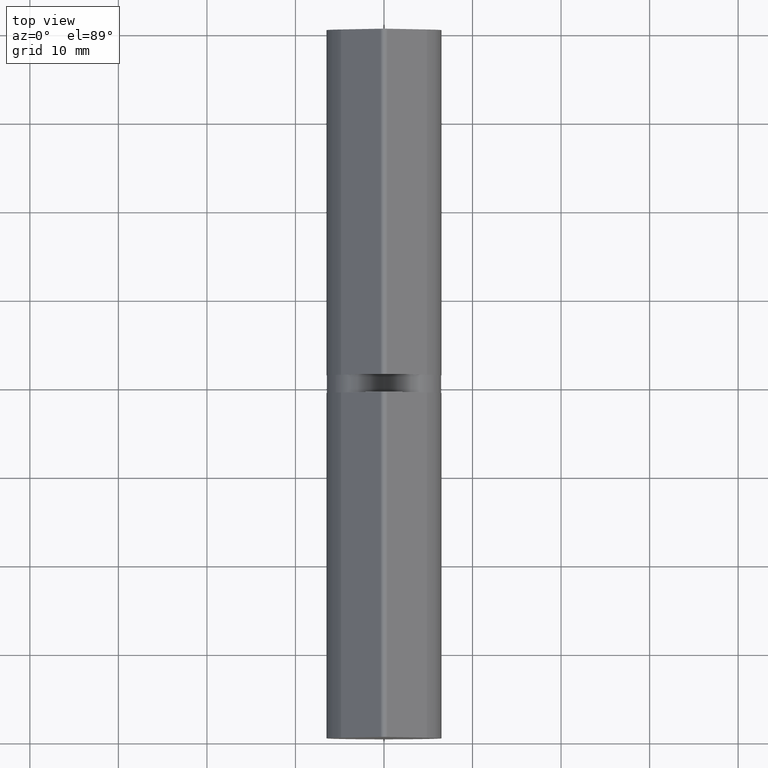
[diagram: clean part render]
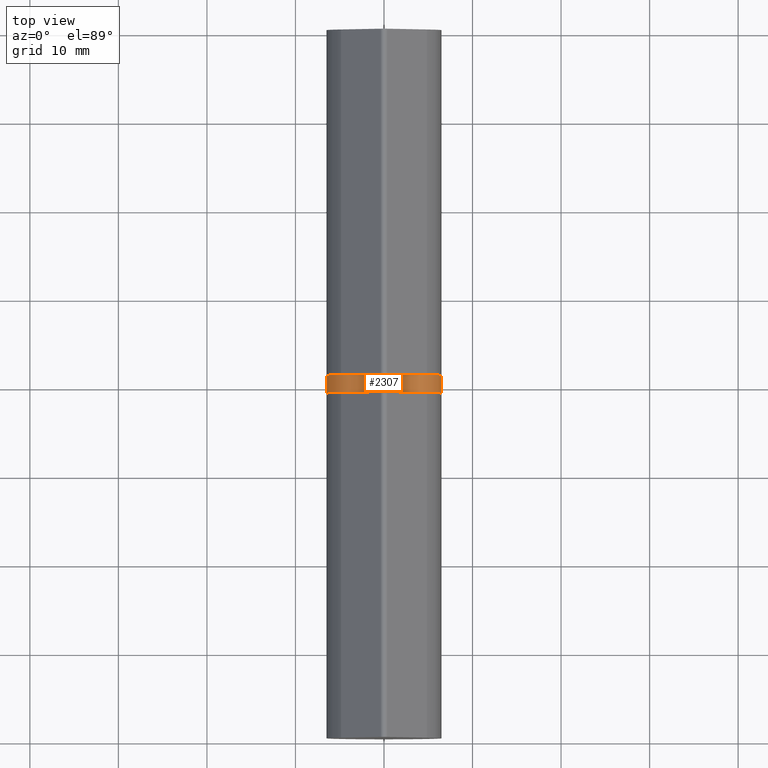
[diagram: same view with one face highlighted and labeled with its STEP entity id]
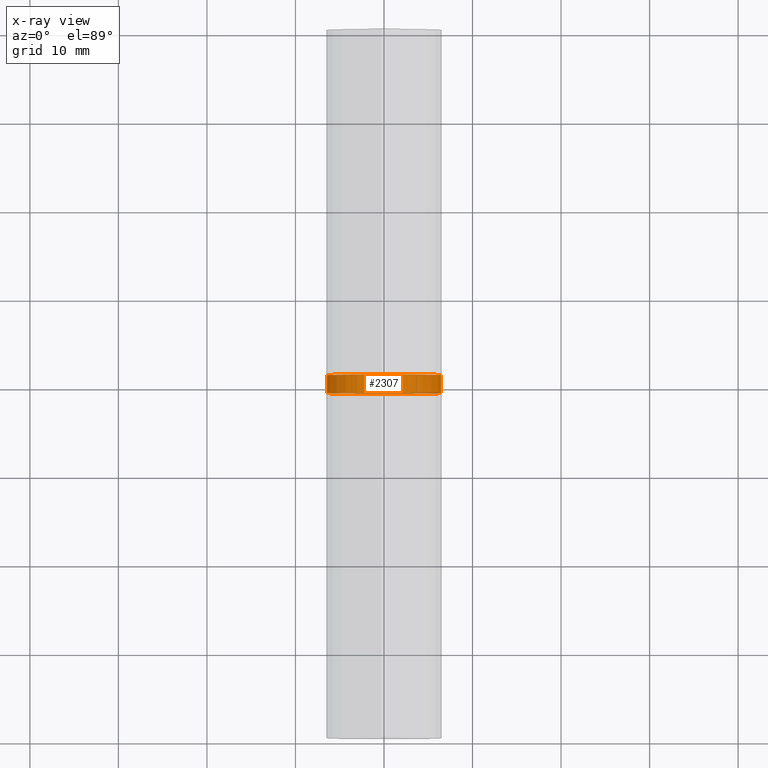
[diagram: x-ray of the same camera — body ghosted, the highlighted face saturated]
A machine part, top view. The second image highlights one B-rep face of the part: STEP entity #2307.
The next image is the same camera in x-ray: the body ghosted, the highlighted face saturated — about 7% of this face is hidden behind the body in this view.
In plain terms, the highlighted cylindrical surface (bore or boss wall) has radius 6.5 mm, axis along (-0, -1, -0).
Its self-contained STEP definition (entity closure, byte-faithful):
#342 = VERTEX_POINT ( 'NONE', #13387 ) ;
#1137 = CARTESIAN_POINT ( 'NONE',  ( 0.000000000000000000, 1.000000000000000000, 0.000000000000000000 ) ) ;
#2046 = VERTEX_POINT ( 'NONE', #5025 ) ;
#2307 = ADVANCED_FACE ( 'NONE', ( #4671, #6520 ), #13538, .T. ) ;
#2432 = AXIS2_PLACEMENT_3D ( 'NONE', #5588, #8639, #8684 ) ;
#3950 = EDGE_CURVE ( 'NONE', #2046, #2046, #8501, .T. ) ;
#4632 = EDGE_LOOP ( 'NONE', ( #11172 ) ) ;
#4671 = FACE_OUTER_BOUND ( 'NONE', #13898, .T. ) ;
#5025 = CARTESIAN_POINT ( 'NONE',  ( 0.000000000000000000, 1.000000000000000000, 6.500000000000000888 ) ) ;
#5137 = CIRCLE ( 'NONE', #2432, 6.500000000000000888 ) ;
#5231 = EDGE_CURVE ( 'NONE', #342, #342, #5137, .T. ) ;
#5588 = CARTESIAN_POINT ( 'NONE',  ( 0.000000000000000000, -1.000000000000000000, 0.000000000000000000 ) ) ;
#6520 = FACE_OUTER_BOUND ( 'NONE', #4632, .T. ) ;
#8501 = CIRCLE ( 'NONE', #11671, 6.500000000000000888 ) ;
#8639 = DIRECTION ( 'NONE',  ( 0.000000000000000000, 1.000000000000000000, 0.000000000000000000 ) ) ;
#8684 = DIRECTION ( 'NONE',  ( 0.000000000000000000, 0.000000000000000000, 1.000000000000000000 ) ) ;
#9245 = DIRECTION ( 'NONE',  ( -0.000000000000000000, -1.000000000000000000, -0.000000000000000000 ) ) ;
#9758 = DIRECTION ( 'NONE',  ( 0.000000000000000000, 1.000000000000000000, 0.000000000000000000 ) ) ;
#10778 = AXIS2_PLACEMENT_3D ( 'NONE', #13385, #9245, #12367 ) ;
#11172 = ORIENTED_EDGE ( 'NONE', *, *, #5231, .T. ) ;
#11218 = ORIENTED_EDGE ( 'NONE', *, *, #3950, .F. ) ;
#11671 = AXIS2_PLACEMENT_3D ( 'NONE', #1137, #9758, #13854 ) ;
#12367 = DIRECTION ( 'NONE',  ( 0.000000000000000000, 0.000000000000000000, -1.000000000000000000 ) ) ;
#13385 = CARTESIAN_POINT ( 'NONE',  ( 0.000000000000000000, 1.000000000000000000, 0.000000000000000000 ) ) ;
#13387 = CARTESIAN_POINT ( 'NONE',  ( 0.000000000000000000, -1.000000000000000000, 6.500000000000000888 ) ) ;
#13538 = CYLINDRICAL_SURFACE ( 'NONE', #10778, 6.500000000000000888 ) ;
#13854 = DIRECTION ( 'NONE',  ( 0.000000000000000000, 0.000000000000000000, 1.000000000000000000 ) ) ;
#13898 = EDGE_LOOP ( 'NONE', ( #11218 ) ) ;